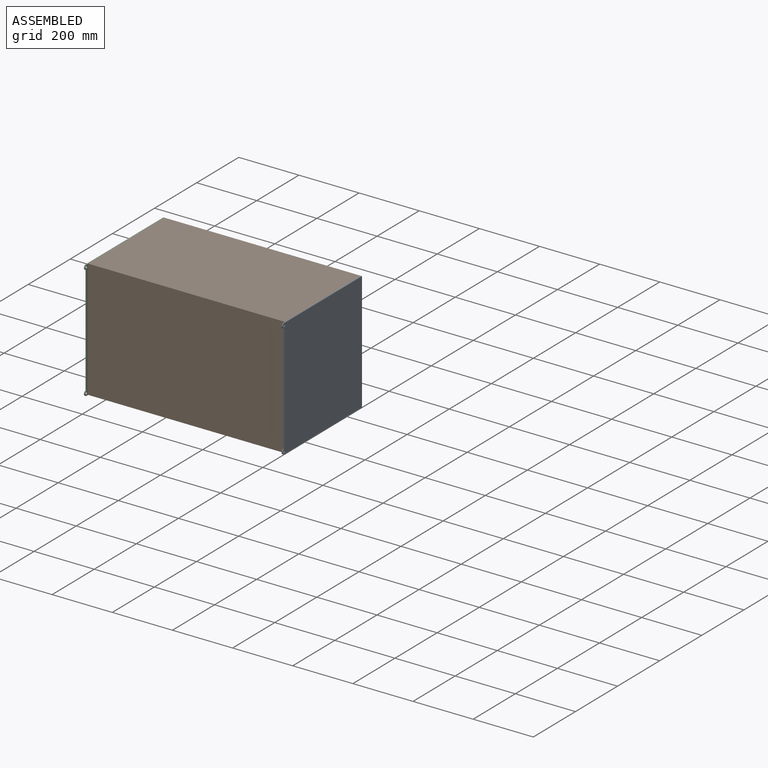
[diagram: assembled view]
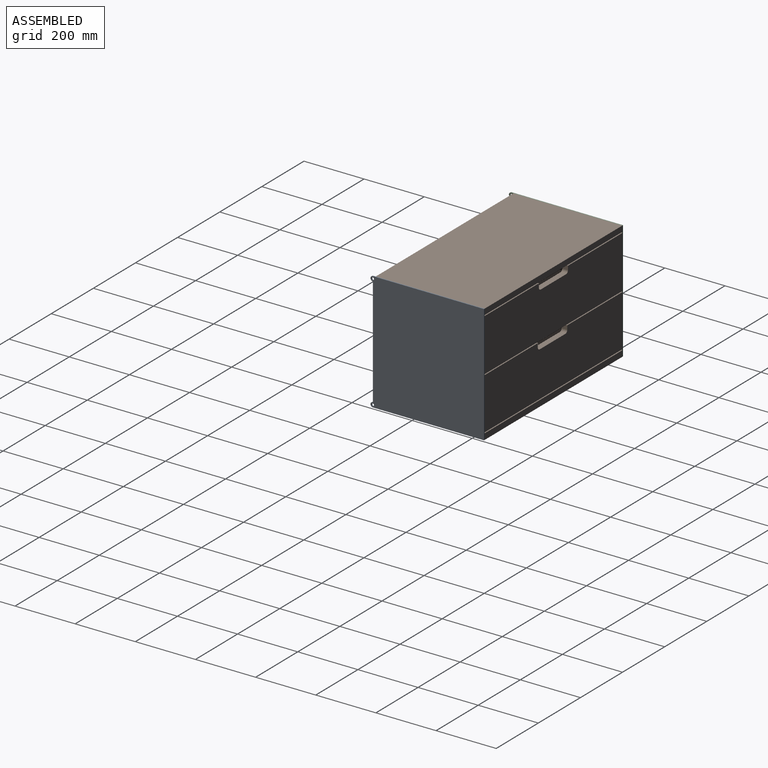
[diagram: assembled view, second angle]
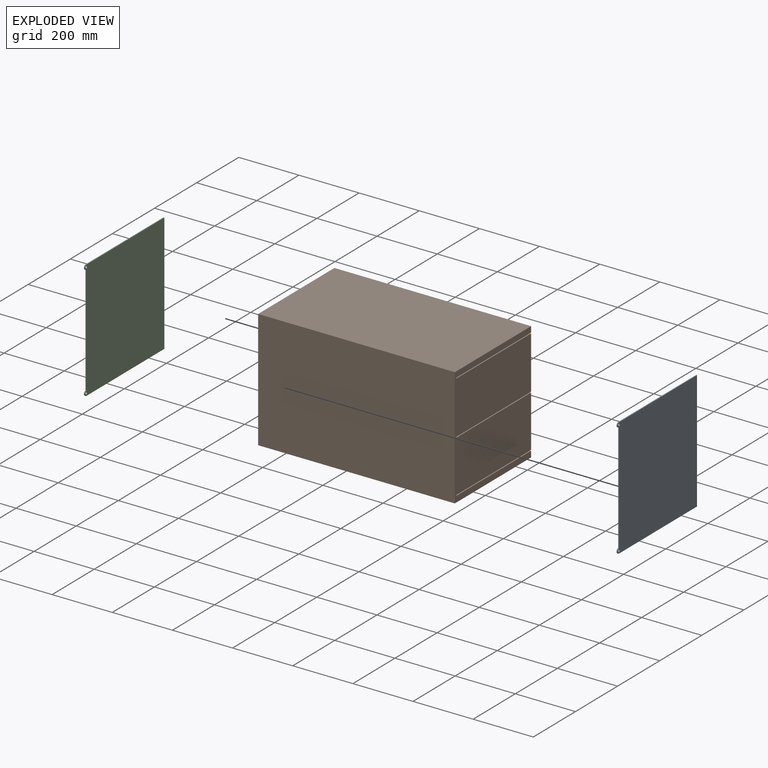
[diagram: exploded view]
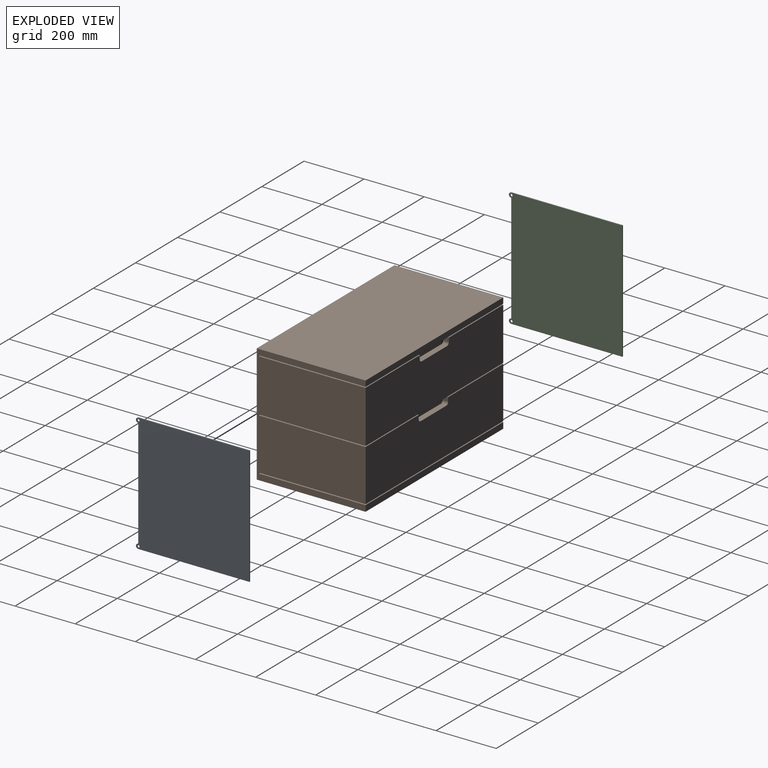
[diagram: exploded view, second angle]
ASSEMBLY  parts=3 mates=2
PART A: 10 faces, bbox 3.2x377.4x394.5 mm
  f0: cylinder r=7.87mm len=15.75mm, axis (-1,0,0), area 78.5mm2, adj f1,f7,f8,f9
  f1: plane 362.99x3.18mm, normal (0,-1,0), area 1152.5mm2, adj f0,f2,f8,f9
  f2: cylinder r=7.87mm len=15.75mm, axis (-1,0,0), area 78.5mm2, adj f1,f3,f8,f9
  f3: plane 369.49x3.18mm, normal (0,0,-1), area 1173.1mm2, adj f2,f4,f8,f9
  f4: plane 394.49x3.18mm, normal (0,1,0), area 1252.5mm2, adj f3,f7,f8,f9
  f5: cylinder r=4mm len=8mm, axis (-1,0,0), area 79.8mm2, adj f8,f9
  f6: cylinder r=4mm len=8mm, axis (-1,0,0), area 79.8mm2, adj f8,f9
  f7: plane 369.49x3.18mm, normal (0,0,1), area 1173.1mm2, adj f0,f4,f8,f9
  f8: plane 394.49x377.37mm, normal (1,0,0), area 145854.9mm2, adj f0,f1,f2,f3,f4,f5,f6,f7
  f9: plane 394.49x377.37mm, normal (-1,0,0), area 145854.9mm2, adj f0,f1,f2,f3,f4,f5,f6,f7
PART B: 50 faces, bbox 654.1x362x394.5 mm
  f0: plane 355.6x252.23mm, normal (0,0,1), area 14177.6mm2, adj f1,f23,f25,f31,f32,f47,f48,f49
  f1: plane 19.05x13.43mm, normal (-1,0,0), area 255.8mm2, adj f0,f3,f23,f47
  f2: cylinder r=9.47mm len=12.7mm, axis (0,1,0), area 181.4mm2, adj f4,f31,f32,f49
  f3: cylinder r=9.47mm len=19.05mm, axis (0,1,0), area 272.1mm2, adj f1,f5,f23,f47
  f4: plane 121.54x12.7mm, normal (0,0,1), area 1543.6mm2, adj f2,f6,f31,f49
  f5: plane 121.54x19.05mm, normal (0,0,1), area 2315.4mm2, adj f3,f7,f23,f47
  f6: cylinder r=8.88mm len=12.7mm, axis (0,1,0), area 179.5mm2, adj f4,f8,f31,f49
  f7: cylinder r=8.88mm len=19.05mm, axis (0,1,0), area 269.2mm2, adj f5,f9,f23,f47
  f8: plane 13.43x12.7mm, normal (1,0,0), area 170.5mm2, adj f6,f31,f33,f49
  f9: plane 19.05x13.43mm, normal (1,0,0), area 255.8mm2, adj f7,f23,f33,f47
  f10: cylinder r=8.77mm len=12.7mm, axis (0,1,0), area 177.2mm2, adj f12,f19,f39,f43
  f11: cylinder r=8.77mm len=19.05mm, axis (0,1,0), area 265.8mm2, adj f13,f20,f21,f41
  f12: plane 120x12.7mm, normal (0,0,1), area 1524mm2, adj f10,f14,f39,f43
  f13: plane 120x19.05mm, normal (0,0,1), area 2286mm2, adj f11,f15,f21,f41
  f14: cylinder r=9.35mm len=12.7mm, axis (0,1,0), area 179.1mm2, adj f12,f16,f39,f43
  f15: cylinder r=9.35mm len=19.05mm, axis (0,1,0), area 268.6mm2, adj f13,f17,f21,f41
  f16: plane 13.26x12.7mm, normal (-1,0,0), area 168.4mm2, adj f14,f18,f39,f43
  f17: plane 19.05x13.26mm, normal (-1,0,0), area 252.6mm2, adj f15,f18,f21,f41
  f18: plane 355.6x257.33mm, normal (0,0,1), area 14339.6mm2, adj f16,f17,f21,f25,f39,f41,f42,f43
  f19: plane 13.26x12.7mm, normal (1,0,0), area 168.4mm2, adj f10,f37,f39,f43
  f20: plane 19.05x13.26mm, normal (1,0,0), area 252.6mm2, adj f11,f21,f37,f41
  f21: plane 654.05x174.46mm, normal (0,1,0), area 111097.6mm2, adj f11,f13,f15,f17,f18,f20,f24,f25
  f22: plane 654.05x19.79mm, normal (0,1,0), area 12944.7mm2, adj f24,f25,f29,f35
  f23: plane 654.05x171.67mm, normal (0,1,0), area 109191.2mm2, adj f0,f1,f3,f5,f7,f9,f24,f25
  f24: plane 394.49x361.95mm, normal (-1,0,0), area 139383.1mm2, adj f21,f22,f23,f26,f27,f28,f29,f30
  f25: plane 394.49x361.95mm, normal (1,0,0), area 139383.1mm2, adj f0,f18,f21,f22,f23,f26,f27,f28
  f26: plane 654.05x394.49mm, normal (0,-1,0), area 258014.5mm2, adj f24,f25,f27,f29
  f27: plane 654.05x361.95mm, normal (0,0,1), area 236733.4mm2, adj f24,f25,f26,f28
  f28: plane 654.05x19mm, normal (0,1,0), area 12426.4mm2, adj f24,f25,f27,f38
  f29: plane 654.05x361.95mm, normal (0,0,-1), area 236733.4mm2, adj f22,f24,f25,f26
  f30: plane 654.05x355.6mm, normal (0,0,-1), area 232580mm2, adj f21,f24,f25,f31
  f31: plane 654.05x25.52mm, normal (0,1,0), area 5191.3mm2, adj f0,f2,f4,f6,f8,f24,f25,f30
  f32: plane 13.43x12.7mm, normal (-1,0,0), area 170.5mm2, adj f0,f2,f31,f49
  f33: plane 355.6x261.76mm, normal (0,0,1), area 14480mm2, adj f8,f9,f23,f24,f31,f46,f47,f49
  f34: plane 654.05x355.6mm, normal (0,0,-1), area 232580.2mm2, adj f23,f24,f25,f36
  f35: plane 654.05x355.6mm, normal (0,0,1), area 232580.2mm2, adj f22,f24,f25,f36
  f36: plane 654.05x3.18mm, normal (0,1,0), area 2076.6mm2, adj f24,f25,f34,f35
  f37: plane 355.6x258.44mm, normal (0,0,1), area 14374.7mm2, adj f19,f20,f21,f24,f39,f40,f41,f43
  f38: plane 654.05x355.6mm, normal (0,0,-1), area 232580.2mm2, adj f24,f25,f28,f39
  f39: plane 654.05x25.2mm, normal (0,1,0), area 5086.6mm2, adj f10,f12,f14,f16,f18,f19,f24,f25
  f40: plane 323.85x155.41mm, normal (1,0,0), area 50330.6mm2, adj f37,f41,f43,f44
  f41: plane 615.95x155.41mm, normal (0,-1,0), area 92716.8mm2, adj f11,f13,f15,f17,f18,f20,f37,f40
  f42: plane 323.85x155.41mm, normal (-1,0,0), area 50330.6mm2, adj f18,f41,f43,f44
  f43: plane 615.95x155.41mm, normal (0,1,0), area 92716.8mm2, adj f10,f12,f14,f16,f18,f19,f37,f40
  f44: plane 615.95x323.85mm, normal (0,0,1), area 199475.4mm2, adj f40,f41,f42,f43
  f45: plane 615.95x323.85mm, normal (0,0,1), area 199475.4mm2, adj f46,f47,f48,f49
  f46: plane 323.85x152.62mm, normal (1,0,0), area 49425.2mm2, adj f33,f45,f47,f49
  f47: plane 615.95x152.62mm, normal (0,-1,0), area 90916.8mm2, adj f0,f1,f3,f5,f7,f9,f33,f45
  f48: plane 323.85x152.62mm, normal (-1,0,0), area 49425.2mm2, adj f0,f45,f47,f49
  f49: plane 615.95x152.62mm, normal (0,1,0), area 90916.8mm2, adj f0,f2,f4,f6,f8,f32,f33,f45
PART C: same geometry as A
PLACE A t=(-3787.97,5815.27,-3263.03)mm
PLACE B t=(-2512.47,5815.27,-2778.46)mm
PLACE C t=(-4445.2,5815.27,-3263.03)mm
MATE fastened B.f25 <-> A.f9  axis (1,0,0) through (-3787.97,-2350.23,-332.02)mm
MATE fastened C.f8 <-> B.f24  axis (1,0,0) through (-4442.02,-2350.23,-332.02)mm
